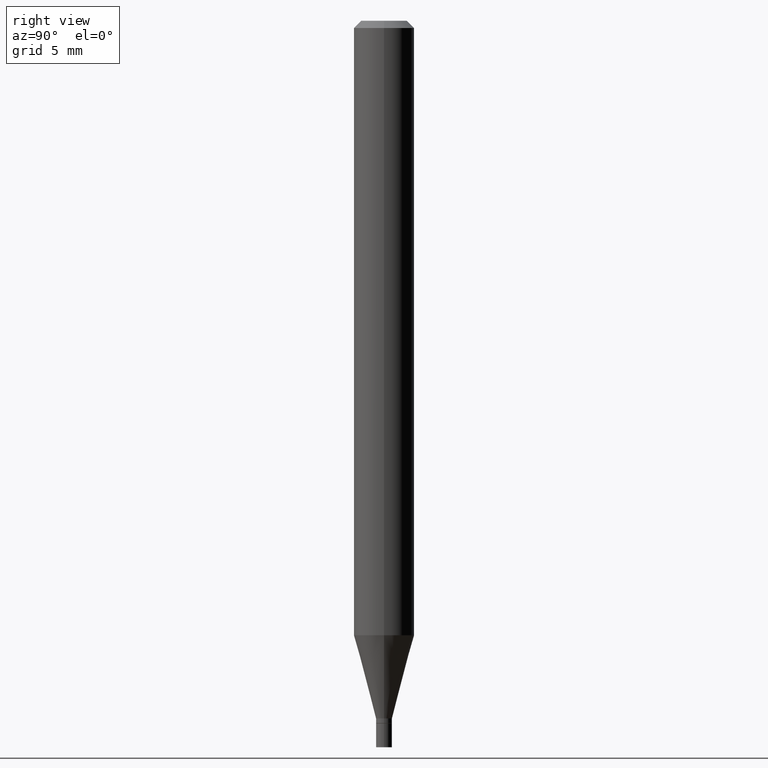
[diagram: clean part render]
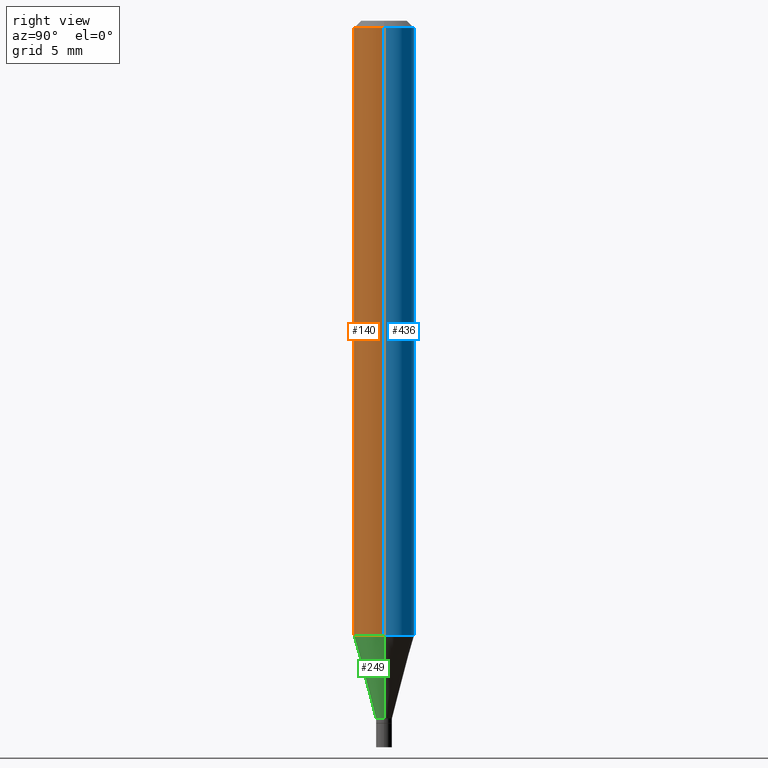
[diagram: same view with three faces highlighted in distinct colors, each labeled with its STEP entity id]
A machine part, right view with three faces highlighted in distinct colors.
Their STEP definitions:

[orange] entity #140 — the highlighted cylindrical surface (edge-blend (fillet) strip) has radius 1.5875 mm, axis along (-0, 0, 1).
#2 = VECTOR ( 'NONE', #173, 39.37007874015748143 ) ;
#4 = VERTEX_POINT ( 'NONE', #49 ) ;
#12 = EDGE_CURVE ( 'NONE', #4, #375, #435, .T. ) ;
#15 = CARTESIAN_POINT ( 'NONE',  ( -0.06250000000000000000, -1.797137462237488700E-15, -0.01499999999999999944 ) ) ;
#25 = DIRECTION ( 'NONE',  ( -2.445468806185136877E-29, 3.491481338843145188E-15, 1.000000000000000000 ) ) ;
#28 = DIRECTION ( 'NONE',  ( 1.000000000000000000, -6.982962677686266711E-15, 0.000000000000000000 ) ) ;
#49 = CARTESIAN_POINT ( 'NONE',  ( -0.06250000000000001388, -3.985991914242392542E-15, -1.268825662851831737 ) ) ;
#50 = CIRCLE ( 'NONE', #147, 0.06250000000000000000 ) ;
#64 = DIRECTION ( 'NONE',  ( 1.000000000000000000, -6.982962677686266711E-15, 4.876176775795935793E-29 ) ) ;
#85 = VERTEX_POINT ( 'NONE', #120 ) ;
#113 = CARTESIAN_POINT ( 'NONE',  ( -0.06250000000000000000, 4.440892098500626162E-16, -3.074334431409316114E-30 ) ) ;
#120 = CARTESIAN_POINT ( 'NONE',  ( 0.06250000000000000000, -4.888073874380388472E-16, -0.01499999999999999944 ) ) ;
#140 = ADVANCED_FACE ( 'NONE', ( #297 ), #162, .T. ) ;
#147 = AXIS2_PLACEMENT_3D ( 'NONE', #365, #196, #28 ) ;
#156 = DIRECTION ( 'NONE',  ( -2.445468806185136597E-29, 3.491481338843145583E-15, 1.000000000000000000 ) ) ;
#160 = ORIENTED_EDGE ( 'NONE', *, *, #465, .T. ) ;
#162 = CYLINDRICAL_SURFACE ( 'NONE', #323, 0.06250000000000000000 ) ;
#167 = DIRECTION ( 'NONE',  ( 1.000000000000000000, -6.982962677686262766E-15, 0.000000000000000000 ) ) ;
#173 = DIRECTION ( 'NONE',  ( -2.445468806185136877E-29, 3.491481338843145188E-15, 1.000000000000000000 ) ) ;
#196 = DIRECTION ( 'NONE',  ( -2.445468806185136597E-29, 3.491481338843145583E-15, 1.000000000000000000 ) ) ;
#228 = VECTOR ( 'NONE', #25, 39.37007874015748143 ) ;
#241 = CARTESIAN_POINT ( 'NONE',  ( 0.06250000000000001388, -4.866516291447847616E-15, -1.268825662851831737 ) ) ;
#242 = CARTESIAN_POINT ( 'NONE',  ( 0.06250000000000000000, -4.364351673553916694E-16, 3.047610484872459871E-30 ) ) ;
#264 = EDGE_LOOP ( 'NONE', ( #278, #160, #447, #313 ) ) ;
#275 = CARTESIAN_POINT ( 'NONE',  ( 0.000000000000000000, 0.000000000000000000, 0.000000000000000000 ) ) ;
#278 = ORIENTED_EDGE ( 'NONE', *, *, #12, .F. ) ;
#280 = LINE ( 'NONE', #242, #2 ) ;
#286 = EDGE_CURVE ( 'NONE', #301, #85, #280, .T. ) ;
#297 = FACE_OUTER_BOUND ( 'NONE', #264, .T. ) ;
#301 = VERTEX_POINT ( 'NONE', #241 ) ;
#302 = CARTESIAN_POINT ( 'NONE',  ( 3.102873578991333578E-29, -4.430081124092455158E-15, -1.268825662851831737 ) ) ;
#313 = ORIENTED_EDGE ( 'NONE', *, *, #444, .F. ) ;
#316 = AXIS2_PLACEMENT_3D ( 'NONE', #302, #156, #167 ) ;
#323 = AXIS2_PLACEMENT_3D ( 'NONE', #275, #412, #64 ) ;
#365 = CARTESIAN_POINT ( 'NONE',  ( 3.668203209277705088E-31, -5.237222008264718399E-17, -0.01499999999999999944 ) ) ;
#375 = VERTEX_POINT ( 'NONE', #15 ) ;
#412 = DIRECTION ( 'NONE',  ( -2.445468806185136597E-29, 3.491481338843145583E-15, 1.000000000000000000 ) ) ;
#414 = CIRCLE ( 'NONE', #316, 0.06250000000000000000 ) ;
#435 = LINE ( 'NONE', #113, #228 ) ;
#444 = EDGE_CURVE ( 'NONE', #375, #85, #50, .T. ) ;
#447 = ORIENTED_EDGE ( 'NONE', *, *, #286, .T. ) ;
#465 = EDGE_CURVE ( 'NONE', #4, #301, #414, .T. ) ;

[blue] entity #436 — the highlighted cylindrical surface (edge-blend (fillet) strip) has radius 1.5875 mm, axis along (-0, 0, 1).
#2 = VECTOR ( 'NONE', #173, 39.37007874015748143 ) ;
#4 = VERTEX_POINT ( 'NONE', #49 ) ;
#7 = CARTESIAN_POINT ( 'NONE',  ( 3.668203209277705088E-31, -5.237222008264718399E-17, -0.01499999999999999944 ) ) ;
#9 = ORIENTED_EDGE ( 'NONE', *, *, #355, .F. ) ;
#12 = EDGE_CURVE ( 'NONE', #4, #375, #435, .T. ) ;
#15 = CARTESIAN_POINT ( 'NONE',  ( -0.06250000000000000000, -1.797137462237488700E-15, -0.01499999999999999944 ) ) ;
#25 = DIRECTION ( 'NONE',  ( -2.445468806185136877E-29, 3.491481338843145188E-15, 1.000000000000000000 ) ) ;
#43 = AXIS2_PLACEMENT_3D ( 'NONE', #116, #373, #376 ) ;
#49 = CARTESIAN_POINT ( 'NONE',  ( -0.06250000000000001388, -3.985991914242392542E-15, -1.268825662851831737 ) ) ;
#57 = CIRCLE ( 'NONE', #370, 0.06250000000000000000 ) ;
#85 = VERTEX_POINT ( 'NONE', #120 ) ;
#113 = CARTESIAN_POINT ( 'NONE',  ( -0.06250000000000000000, 4.440892098500626162E-16, -3.074334431409316114E-30 ) ) ;
#116 = CARTESIAN_POINT ( 'NONE',  ( 0.000000000000000000, 0.000000000000000000, 0.000000000000000000 ) ) ;
#120 = CARTESIAN_POINT ( 'NONE',  ( 0.06250000000000000000, -4.888073874380388472E-16, -0.01499999999999999944 ) ) ;
#127 = ORIENTED_EDGE ( 'NONE', *, *, #393, .T. ) ;
#128 = FACE_OUTER_BOUND ( 'NONE', #252, .T. ) ;
#148 = ORIENTED_EDGE ( 'NONE', *, *, #286, .F. ) ;
#173 = DIRECTION ( 'NONE',  ( -2.445468806185136877E-29, 3.491481338843145188E-15, 1.000000000000000000 ) ) ;
#228 = VECTOR ( 'NONE', #25, 39.37007874015748143 ) ;
#241 = CARTESIAN_POINT ( 'NONE',  ( 0.06250000000000001388, -4.866516291447847616E-15, -1.268825662851831737 ) ) ;
#242 = CARTESIAN_POINT ( 'NONE',  ( 0.06250000000000000000, -4.364351673553916694E-16, 3.047610484872459871E-30 ) ) ;
#248 = AXIS2_PLACEMENT_3D ( 'NONE', #362, #293, #438 ) ;
#251 = DIRECTION ( 'NONE',  ( 1.000000000000000000, -6.982962677686266711E-15, 0.000000000000000000 ) ) ;
#252 = EDGE_LOOP ( 'NONE', ( #127, #440, #9, #148 ) ) ;
#280 = LINE ( 'NONE', #242, #2 ) ;
#286 = EDGE_CURVE ( 'NONE', #301, #85, #280, .T. ) ;
#293 = DIRECTION ( 'NONE',  ( -2.445468806185136597E-29, 3.491481338843145583E-15, 1.000000000000000000 ) ) ;
#301 = VERTEX_POINT ( 'NONE', #241 ) ;
#327 = DIRECTION ( 'NONE',  ( -2.445468806185136597E-29, 3.491481338843145583E-15, 1.000000000000000000 ) ) ;
#355 = EDGE_CURVE ( 'NONE', #85, #375, #57, .T. ) ;
#362 = CARTESIAN_POINT ( 'NONE',  ( 3.102873578991333578E-29, -4.430081124092455158E-15, -1.268825662851831737 ) ) ;
#370 = AXIS2_PLACEMENT_3D ( 'NONE', #7, #327, #251 ) ;
#373 = DIRECTION ( 'NONE',  ( -2.445468806185136597E-29, 3.491481338843145583E-15, 1.000000000000000000 ) ) ;
#375 = VERTEX_POINT ( 'NONE', #15 ) ;
#376 = DIRECTION ( 'NONE',  ( 1.000000000000000000, -6.982962677686266711E-15, 4.876176775795935793E-29 ) ) ;
#393 = EDGE_CURVE ( 'NONE', #301, #4, #431, .T. ) ;
#431 = CIRCLE ( 'NONE', #248, 0.06250000000000000000 ) ;
#435 = LINE ( 'NONE', #113, #228 ) ;
#436 = ADVANCED_FACE ( 'NONE', ( #128 ), #450, .T. ) ;
#438 = DIRECTION ( 'NONE',  ( 1.000000000000000000, -6.982962677686262766E-15, 0.000000000000000000 ) ) ;
#440 = ORIENTED_EDGE ( 'NONE', *, *, #12, .T. ) ;
#450 = CYLINDRICAL_SURFACE ( 'NONE', #43, 0.06250000000000000000 ) ;

[green] entity #249 — the highlighted conical surface has half-angle 15 deg.
#4 = VERTEX_POINT ( 'NONE', #49 ) ;
#8 = VERTEX_POINT ( 'NONE', #291 ) ;
#18 = ORIENTED_EDGE ( 'NONE', *, *, #70, .T. ) ;
#49 = CARTESIAN_POINT ( 'NONE',  ( -0.06250000000000001388, -3.985991914242392542E-15, -1.268825662851831737 ) ) ;
#61 = LINE ( 'NONE', #407, #193 ) ;
#66 = LINE ( 'NONE', #330, #216 ) ;
#70 = EDGE_CURVE ( 'NONE', #8, #466, #427, .T. ) ;
#103 = DIRECTION ( 'NONE',  ( -2.445468806185136597E-29, 3.491481338843145583E-15, 1.000000000000000000 ) ) ;
#124 = CARTESIAN_POINT ( 'NONE',  ( 3.522697815309689546E-29, -5.029478868603552152E-15, -1.440500000000000114 ) ) ;
#129 = DIRECTION ( 'NONE',  ( 0.2588190451025211281, 1.565188264969623940E-15, 0.9659258262890682012 ) ) ;
#136 = CARTESIAN_POINT ( 'NONE',  ( 3.522697815309689546E-29, -5.029478868603552152E-15, -1.440500000000000114 ) ) ;
#156 = DIRECTION ( 'NONE',  ( -2.445468806185136597E-29, 3.491481338843145583E-15, 1.000000000000000000 ) ) ;
#163 = EDGE_CURVE ( 'NONE', #466, #301, #61, .T. ) ;
#167 = DIRECTION ( 'NONE',  ( 1.000000000000000000, -6.982962677686262766E-15, 0.000000000000000000 ) ) ;
#171 = DIRECTION ( 'NONE',  ( 1.000000000000000000, -6.982962677686276177E-15, 0.000000000000000000 ) ) ;
#179 = EDGE_CURVE ( 'NONE', #8, #4, #66, .T. ) ;
#193 = VECTOR ( 'NONE', #129, 39.37007874015748143 ) ;
#197 = DIRECTION ( 'NONE',  ( -2.445468806185136597E-29, 3.491481338843145583E-15, 1.000000000000000000 ) ) ;
#211 = EDGE_LOOP ( 'NONE', ( #287, #18, #231, #430 ) ) ;
#216 = VECTOR ( 'NONE', #305, 39.37007874015748143 ) ;
#231 = ORIENTED_EDGE ( 'NONE', *, *, #163, .T. ) ;
#241 = CARTESIAN_POINT ( 'NONE',  ( 0.06250000000000001388, -4.866516291447847616E-15, -1.268825662851831737 ) ) ;
#246 = DIRECTION ( 'NONE',  ( 1.000000000000000000, -6.982962677686276177E-15, 0.000000000000000000 ) ) ;
#249 = ADVANCED_FACE ( 'NONE', ( #391 ), #353, .T. ) ;
#258 = AXIS2_PLACEMENT_3D ( 'NONE', #124, #197, #171 ) ;
#287 = ORIENTED_EDGE ( 'NONE', *, *, #179, .F. ) ;
#291 = CARTESIAN_POINT ( 'NONE',  ( -0.01649999999999992445, -4.449115615722764621E-15, -1.440500000000000114 ) ) ;
#301 = VERTEX_POINT ( 'NONE', #241 ) ;
#302 = CARTESIAN_POINT ( 'NONE',  ( 3.102873578991333578E-29, -4.430081124092455158E-15, -1.268825662851831737 ) ) ;
#305 = DIRECTION ( 'NONE',  ( -0.2588190451025211281, 5.211531920934548675E-15, 0.9659258262890682012 ) ) ;
#316 = AXIS2_PLACEMENT_3D ( 'NONE', #302, #156, #167 ) ;
#330 = CARTESIAN_POINT ( 'NONE',  ( -0.01649999999999992445, -4.912239317203135912E-15, -1.440500000000000114 ) ) ;
#353 = CONICAL_SURFACE ( 'NONE', #402, 0.01649999999999992445, 0.2617993877991497964 ) ;
#391 = FACE_OUTER_BOUND ( 'NONE', #211, .T. ) ;
#402 = AXIS2_PLACEMENT_3D ( 'NONE', #136, #103, #246 ) ;
#406 = CARTESIAN_POINT ( 'NONE',  ( 0.01649999999999992445, -5.144697752785374543E-15, -1.440500000000000114 ) ) ;
#407 = CARTESIAN_POINT ( 'NONE',  ( 0.01649999999999992445, -5.144697752785374543E-15, -1.440500000000000114 ) ) ;
#414 = CIRCLE ( 'NONE', #316, 0.06250000000000000000 ) ;
#427 = CIRCLE ( 'NONE', #258, 0.01649999999999992445 ) ;
#430 = ORIENTED_EDGE ( 'NONE', *, *, #465, .F. ) ;
#465 = EDGE_CURVE ( 'NONE', #4, #301, #414, .T. ) ;
#466 = VERTEX_POINT ( 'NONE', #406 ) ;